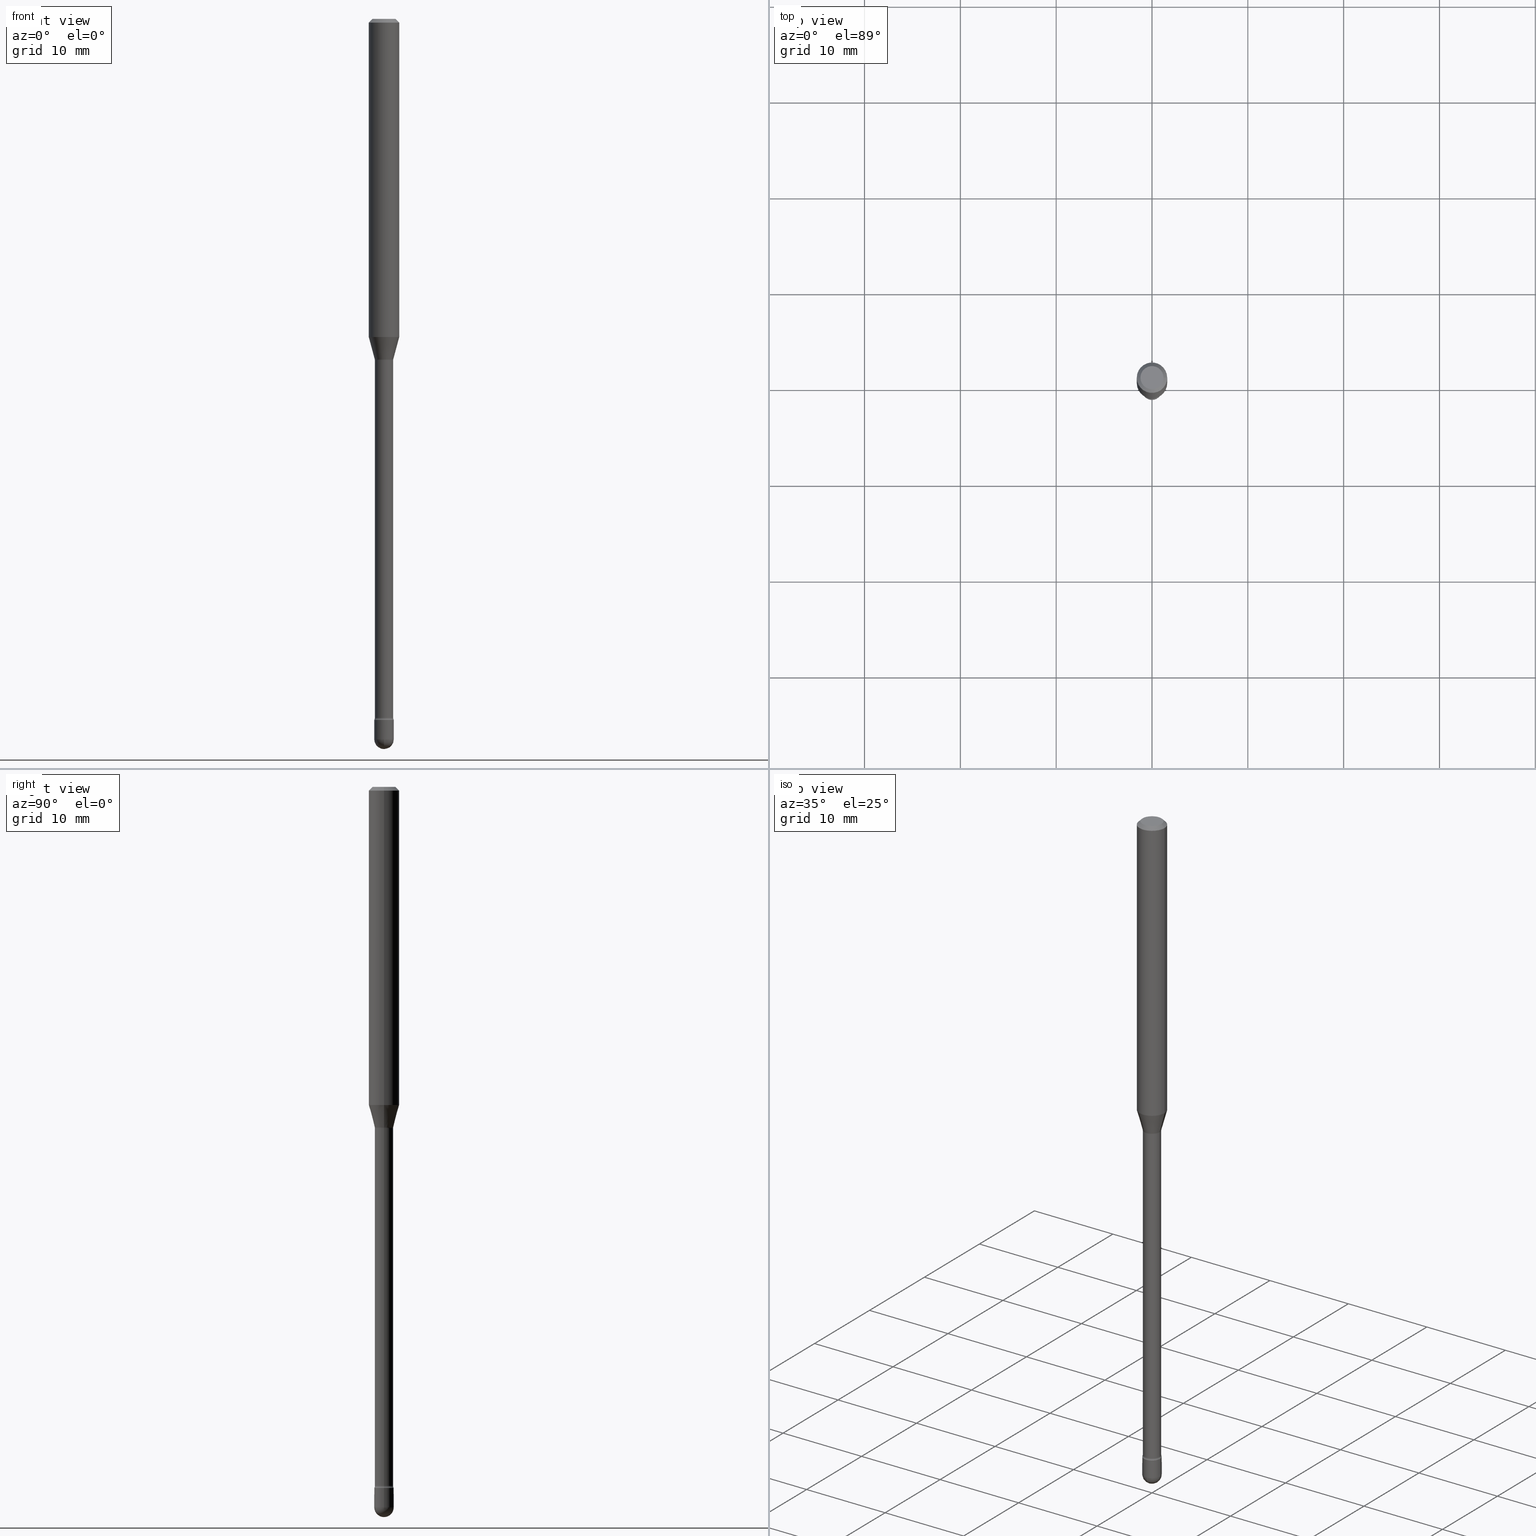
[diagram: canonical four-view strip — front | top / right | iso, engineering-drawing reading convention]
A machine part, canonical four-view strip (front | top / right | iso — engineering-drawing reading convention). The complete STEP part file that produces these views, byte-faithful:
ISO-10303-21;
HEADER;
FILE_DESCRIPTION (( 'STEP AP203' ),
    '1' );
FILE_NAME ('09534.STEP',
    '2024-04-10T00:22:45',
    ( '' ),
    ( '' ),
    'SwSTEP 2.0',
    'SolidWorks 2023',
    '' );
FILE_SCHEMA (( 'CONFIG_CONTROL_DESIGN' ));
ENDSEC;

DATA;
#1 =( GEOMETRIC_REPRESENTATION_CONTEXT ( 3 ) GLOBAL_UNCERTAINTY_ASSIGNED_CONTEXT ( ( #383 ) ) GLOBAL_UNIT_ASSIGNED_CONTEXT ( ( #117, #154, #313 ) ) REPRESENTATION_CONTEXT ( 'NONE', 'WORKASPACE' ) );
#2 = PERSON_AND_ORGANIZATION_ROLE ( 'creator' ) ;
#3 = DIRECTION ( 'NONE',  ( 1.000000000000000000, -6.982962677686255667E-15, 0.000000000000000000 ) ) ;
#4 = EDGE_CURVE ( 'NONE', #456, #12, #48, .T. ) ;
#5 = CARTESIAN_POINT ( 'NONE',  ( 3.668203209277725232E-31, -5.237222008264747365E-17, -0.01500000000000008271 ) ) ;
#6 = DIRECTION ( 'NONE',  ( 1.000000000000000000, -6.982962677686262766E-15, 0.000000000000000000 ) ) ;
#7 = ORIENTED_EDGE ( 'NONE', *, *, #4, .F. ) ;
#8 = VECTOR ( 'NONE', #85, 39.37007874015748143 ) ;
#9 = DIRECTION ( 'NONE',  ( 0.2588190451025209615, 1.565188264969624926E-15, 0.9659258262890682012 ) ) ;
#10 = ORIENTED_EDGE ( 'NONE', *, *, #197, .F. ) ;
#11 = DIRECTION ( 'NONE',  ( -2.445468806185136597E-29, 3.491481338843145583E-15, 1.000000000000000000 ) ) ;
#12 = VERTEX_POINT ( 'NONE', #483 ) ;
#13 = ADVANCED_FACE ( 'NONE', ( #35 ), #152, .T. ) ;
#14 = CYLINDRICAL_SURFACE ( 'NONE', #295, 0.04000000000000000083 ) ;
#15 = VERTEX_POINT ( 'NONE', #22 ) ;
#16 = EDGE_LOOP ( 'NONE', ( #450, #489, #176, #182 ) ) ;
#17 = CIRCLE ( 'NONE', #399, 0.03999999999999999389 ) ;
#18 = DIRECTION ( 'NONE',  ( 1.000000000000000000, -6.982962677686267499E-15, 4.884662768193073002E-29 ) ) ;
#19 = ORIENTED_EDGE ( 'NONE', *, *, #83, .F. ) ;
#20 = EDGE_LOOP ( 'NONE', ( #414, #331, #258, #462 ) ) ;
#21 = LENGTH_MEASURE_WITH_UNIT ( LENGTH_MEASURE( 0.02539999999999999897 ), #467 );
#22 = CARTESIAN_POINT ( 'NONE',  ( -0.06250000000000000000, -1.863905534790959713E-15, -0.01500000000000008271 ) ) ;
#23 = ORIENTED_EDGE ( 'NONE', *, *, #137, .T. ) ;
#24 = VERTEX_POINT ( 'NONE', #416 ) ;
#25 = FACE_OUTER_BOUND ( 'NONE', #141, .T. ) ;
#26 = DIRECTION ( 'NONE',  ( -2.438088387897960049E-29, 3.491481338843145188E-15, 1.000000000000000000 ) ) ;
#27 = LOCAL_TIME ( 20, 22, 45.00000000000000000, #385 ) ;
#28 = VERTEX_POINT ( 'NONE', #158 ) ;
#29 = DIRECTION ( 'NONE',  ( -2.445468806185136597E-29, 3.491481338843145583E-15, 1.000000000000000000 ) ) ;
#30 = DIRECTION ( 'NONE',  ( -0.2588190451025209615, 5.211531920934547097E-15, 0.9659258262890682012 ) ) ;
#31 = ADVANCED_FACE ( 'NONE', ( #324 ), #436, .F. ) ;
#32 = CARTESIAN_POINT ( 'NONE',  ( 7.042950161813195730E-29, -1.005546625586826288E-14, -2.880000000000000782 ) ) ;
#33 = VERTEX_POINT ( 'NONE', #287 ) ;
#34 = ADVANCED_FACE ( 'NONE', ( #192 ), #121, .T. ) ;
#35 = FACE_OUTER_BOUND ( 'NONE', #484, .T. ) ;
#36 = VERTEX_POINT ( 'NONE', #202 ) ;
#37 = CC_DESIGN_PERSON_AND_ORGANIZATION_ASSIGNMENT ( #321, #2, ( #157 ) ) ;
#38 = APPROVAL_STATUS ( 'not_yet_approved' ) ;
#39 = ORIENTED_EDGE ( 'NONE', *, *, #342, .F. ) ;
#40 = CIRCLE ( 'NONE', #84, 0.04000000000000004940 ) ;
#41 = DIRECTION ( 'NONE',  ( 1.000000000000000000, -6.982962677686284065E-15, 0.000000000000000000 ) ) ;
#42 = AXIS2_PLACEMENT_3D ( 'NONE', #100, #536, #341 ) ;
#43 = LINE ( 'NONE', #164, #485 ) ;
#44 = EDGE_CURVE ( 'NONE', #12, #456, #294, .T. ) ;
#45 = DIRECTION ( 'NONE',  ( 7.105427357601001859E-15, 1.000000000000000000, -3.491481338843145583E-15 ) ) ;
#46 = EDGE_LOOP ( 'NONE', ( #405, #87, #93, #180 ) ) ;
#47 = LINE ( 'NONE', #248, #57 ) ;
#48 = CIRCLE ( 'NONE', #354, 0.03811111260566397985 ) ;
#49 = AXIS2_PLACEMENT_3D ( 'NONE', #449, #140, #225 ) ;
#50 = APPROVAL_PERSON_ORGANIZATION ( #193, #105, #325 ) ;
#51 = CARTESIAN_POINT ( 'NONE',  ( -0.06250000000000000000, -4.119528059349334569E-15, -1.307071934891535170 ) ) ;
#52 = EDGE_CURVE ( 'NONE', #159, #466, #512, .T. ) ;
#53 = DIRECTION ( 'NONE',  ( -2.445468806185136597E-29, 3.491481338843145583E-15, 1.000000000000000000 ) ) ;
#54 = EDGE_LOOP ( 'NONE', ( #334, #229, #285, #493 ) ) ;
#55 = ORIENTED_EDGE ( 'NONE', *, *, #222, .T. ) ;
#56 = CARTESIAN_POINT ( 'NONE',  ( 3.668203209277725232E-31, -5.237222008264747365E-17, -0.01500000000000008271 ) ) ;
#57 = VECTOR ( 'NONE', #130, 39.37007874015748143 ) ;
#58 = DIRECTION ( 'NONE',  ( 1.000000000000000000, -6.982962677686285643E-15, 0.000000000000000000 ) ) ;
#59 = ORIENTED_EDGE ( 'NONE', *, *, #246, .T. ) ;
#60 = CARTESIAN_POINT ( 'NONE',  ( 3.196403644217299364E-29, -4.563617269199397974E-15, -1.307071934891535170 ) ) ;
#61 = CC_DESIGN_DATE_AND_TIME_ASSIGNMENT ( #477, #210, ( #157 ) ) ;
#62 = ORIENTED_EDGE ( 'NONE', *, *, #195, .F. ) ;
#63 = CARTESIAN_POINT ( 'NONE',  ( -0.04749999999999999362, 3.578768372314208041E-16, -8.274703207154778150E-17 ) ) ;
#64 = EDGE_CURVE ( 'NONE', #36, #270, #317, .T. ) ;
#65 = TOROIDAL_SURFACE ( 'NONE', #428, 0.05260000000000000786, 0.01500000000000003240 ) ;
#66 = EDGE_CURVE ( 'NONE', #527, #33, #474, .T. ) ;
#67 = LOCAL_TIME ( 20, 22, 45.00000000000000000, #430 ) ;
#68 = DIRECTION ( 'NONE',  ( 2.438088387897960049E-29, -3.491481338843145188E-15, -1.000000000000000000 ) ) ;
#69 = CC_DESIGN_DATE_AND_TIME_ASSIGNMENT ( #129, #133, ( #429 ) ) ;
#70 = APPROVAL_STATUS ( 'not_yet_approved' ) ;
#71 = DIRECTION ( 'NONE',  ( 1.000000000000000000, -6.982962677686262766E-15, 0.000000000000000000 ) ) ;
#72 = DIRECTION ( 'NONE',  ( 0.000000000000000000, 0.000000000000000000, 1.000000000000000000 ) ) ;
#73 = DIRECTION ( 'NONE',  ( 1.000000000000000000, -6.982962677686247778E-15, 0.000000000000000000 ) ) ;
#74 = AXIS2_PLACEMENT_3D ( 'NONE', #56, #96, #138 ) ;
#75 = DIRECTION ( 'NONE',  ( 1.000000000000000000, -6.982962677686285643E-15, 0.000000000000000000 ) ) ;
#76 = CARTESIAN_POINT ( 'NONE',  ( 3.196403644217299364E-29, -4.563617269199397974E-15, -1.307071934891535170 ) ) ;
#77 = ADVANCED_FACE ( 'NONE', ( #554 ), #151, .F. ) ;
#78 = ORIENTED_EDGE ( 'NONE', *, *, #442, .F. ) ;
#79 = DIRECTION ( 'NONE',  ( 1.000000000000000000, -6.982962677686285643E-15, 0.000000000000000000 ) ) ;
#80 = CALENDAR_DATE ( 2024, 9, 4 ) ;
#81 = DIRECTION ( 'NONE',  ( -2.445468806185136877E-29, 3.491481338843145188E-15, 1.000000000000000000 ) ) ;
#82 = ORIENTED_EDGE ( 'NONE', *, *, #468, .T. ) ;
#83 = EDGE_CURVE ( 'NONE', #101, #391, #146, .T. ) ;
#84 = AXIS2_PLACEMENT_3D ( 'NONE', #90, #301, #174 ) ;
#85 = DIRECTION ( 'NONE',  ( -2.445468806185136877E-29, 3.491481338843145188E-15, 1.000000000000000000 ) ) ;
#86 = LOCAL_TIME ( 20, 22, 45.00000000000000000, #173 ) ;
#87 = ORIENTED_EDGE ( 'NONE', *, *, #257, .F. ) ;
#88 = CARTESIAN_POINT ( 'NONE',  ( -0.04000000000000000083, 2.842170943040400803E-16, -1.967574036101962509E-30 ) ) ;
#89 = ORIENTED_EDGE ( 'NONE', *, *, #544, .T. ) ;
#90 = CARTESIAN_POINT ( 'NONE',  ( 7.238587666308004730E-29, -1.033478476297570976E-14, -2.959999999999999964 ) ) ;
#91 = FACE_OUTER_BOUND ( 'NONE', #54, .T. ) ;
#92 = AXIS2_PLACEMENT_3D ( 'NONE', #469, #194, #552 ) ;
#93 = ORIENTED_EDGE ( 'NONE', *, *, #236, .T. ) ;
#94 = AXIS2_PLACEMENT_3D ( 'NONE', #413, #199, #372 ) ;
#95 = EDGE_CURVE ( 'NONE', #298, #24, #319, .T. ) ;
#96 = DIRECTION ( 'NONE',  ( 2.445468806185136597E-29, -3.491481338843145583E-15, -1.000000000000000000 ) ) ;
#97 = DIRECTION ( 'NONE',  ( -2.445468806185136597E-29, 3.491481338843145583E-15, 1.000000000000000000 ) ) ;
#98 = ORIENTED_EDGE ( 'NONE', *, *, #246, .F. ) ;
#99 = ADVANCED_FACE ( 'NONE', ( #206 ), #123, .T. ) ;
#100 = CARTESIAN_POINT ( 'NONE',  ( 7.023046990124811063E-29, -1.002704980158431387E-14, -2.871861204020250469 ) ) ;
#101 = VERTEX_POINT ( 'NONE', #149 ) ;
#102 = ADVANCED_FACE ( 'NONE', ( #25 ), #155, .F. ) ;
#103 = AXIS2_PLACEMENT_3D ( 'NONE', #252, #528, #382 ) ;
#104 = CARTESIAN_POINT ( 'NONE',  ( 3.428485609800787057E-29, -4.894968807958481776E-15, -1.401974787463811101 ) ) ;
#105 = APPROVAL ( #70, 'UNSPECIFIED' ) ;
#106 = ORIENTED_EDGE ( 'NONE', *, *, #52, .T. ) ;
#107 = DIRECTION ( 'NONE',  ( -2.445468806185136597E-29, 3.491481338843145583E-15, 1.000000000000000000 ) ) ;
#108 = ADVANCED_FACE ( 'NONE', ( #234 ), #507, .T. ) ;
#109 = CARTESIAN_POINT ( 'NONE',  ( 2.023552857353652888E-45, -2.889097183224559242E-31, -8.274703207154537794E-17 ) ) ;
#110 = CARTESIAN_POINT ( 'NONE',  ( 3.418991601282113754E-29, -4.881413879966791190E-15, -1.398092501787273179 ) ) ;
#111 = ORIENTED_EDGE ( 'NONE', *, *, #195, .T. ) ;
#112 = CIRCLE ( 'NONE', #250, 0.04000000000000000083 ) ;
#113 = ORIENTED_EDGE ( 'NONE', *, *, #197, .T. ) ;
#114 = AXIS2_PLACEMENT_3D ( 'NONE', #323, #72, #201 ) ;
#115 = PERSON ( 'UNSPECIFIED', 'UNSPECIFIED', 'UNSPECIFIED', ('UNSPECIFIED'), ('UNSPECIFIED'), ('UNSPECIFIED') ) ;
#116 = DIRECTION ( 'NONE',  ( 1.000000000000000000, -6.982962677686261977E-15, 0.000000000000000000 ) ) ;
#117 =( CONVERSION_BASED_UNIT ( 'INCH', #21 ) LENGTH_UNIT ( ) NAMED_UNIT ( #306 ) );
#118 = DIRECTION ( 'NONE',  ( -1.000000000000000000, 7.105427357601001070E-15, -4.926315508542082329E-29 ) ) ;
#119 = VERTEX_POINT ( 'NONE', #457 ) ;
#120 = CYLINDRICAL_SURFACE ( 'NONE', #465, 0.04000000000000000083 ) ;
#121 = SPHERICAL_SURFACE ( 'NONE', #207, 0.04000000000000004940 ) ;
#122 = CIRCLE ( 'NONE', #103, 0.01500000000000010526 ) ;
#123 = CYLINDRICAL_SURFACE ( 'NONE', #92, 0.03760000000000003617 ) ;
#124 = PERSON_AND_ORGANIZATION_ROLE ( 'classification_officer' ) ;
#125 = ORIENTED_EDGE ( 'NONE', *, *, #498, .F. ) ;
#126 = CARTESIAN_POINT ( 'NONE',  ( -0.05260000000000018133, -9.653304322574499734E-15, -2.871861204020250469 ) ) ;
#127 = EDGE_LOOP ( 'NONE', ( #142, #265, #23, #249 ) ) ;
#128 = EDGE_CURVE ( 'NONE', #144, #348, #226, .T. ) ;
#129 = DATE_AND_TIME ( #520, #311 ) ;
#130 = DIRECTION ( 'NONE',  ( -0.7071067811865475727, 2.468850131082257455E-15, -0.7071067811865474617 ) ) ;
#131 = AXIS2_PLACEMENT_3D ( 'NONE', #519, #472, #293 ) ;
#132 = FACE_OUTER_BOUND ( 'NONE', #253, .T. ) ;
#133 = DATE_TIME_ROLE ( 'classification_date' ) ;
#134 = DIRECTION ( 'NONE',  ( -2.445468806185136877E-29, 3.491481338843145188E-15, 1.000000000000000000 ) ) ;
#135 = LINE ( 'NONE', #564, #8 ) ;
#136 = EDGE_CURVE ( 'NONE', #28, #420, #532, .T. ) ;
#137 = EDGE_CURVE ( 'NONE', #349, #15, #47, .T. ) ;
#138 = DIRECTION ( 'NONE',  ( -1.000000000000000000, 6.982962677686266711E-15, 0.000000000000000000 ) ) ;
#139 = CIRCLE ( 'NONE', #283, 0.01500000000000002720 ) ;
#140 = DIRECTION ( 'NONE',  ( -2.445468806185136597E-29, 3.491481338843145583E-15, 1.000000000000000000 ) ) ;
#141 = EDGE_LOOP ( 'NONE', ( #346, #368 ) ) ;
#142 = ORIENTED_EDGE ( 'NONE', *, *, #189, .F. ) ;
#143 = DIRECTION ( 'NONE',  ( 7.105427357601001859E-15, 1.000000000000000000, -3.491481338843145583E-15 ) ) ;
#144 = VERTEX_POINT ( 'NONE', #561 ) ;
#145 = DIRECTION ( 'NONE',  ( -2.445468806185136597E-29, 3.491481338843145583E-15, 1.000000000000000000 ) ) ;
#146 = CIRCLE ( 'NONE', #327, 0.03999999999999999389 ) ;
#147 = AXIS2_PLACEMENT_3D ( 'NONE', #347, #143, #307 ) ;
#148 = CARTESIAN_POINT ( 'NONE',  ( 7.238587666308004730E-29, -1.033478476297570976E-14, -2.959999999999999964 ) ) ;
#149 = CARTESIAN_POINT ( 'NONE',  ( 0.03999999999999999389, -1.047444401652943635E-14, -2.959999999999999964 ) ) ;
#150 = EDGE_CURVE ( 'NONE', #119, #15, #438, .T. ) ;
#151 = PLANE ( 'NONE',  #356 ) ;
#152 = CONICAL_SURFACE ( 'NONE', #377, 0.03811111260566397985, 0.2617993877991496299 ) ;
#153 = CONICAL_SURFACE ( 'NONE', #74, 0.06250000000000000000, 0.7853981633974483900 ) ;
#154 =( NAMED_UNIT ( * ) PLANE_ANGLE_UNIT ( ) SI_UNIT ( $, .RADIAN. ) );
#155 = PLANE ( 'NONE',  #335 ) ;
#156 = DIRECTION ( 'NONE',  ( 1.000000000000000000, -6.982962677686266711E-15, 4.852736867747366207E-29 ) ) ;
#157 = PRODUCT_DEFINITION ( 'UNKNOWN', '', #439, #390 ) ;
#158 = CARTESIAN_POINT ( 'NONE',  ( -0.04000000000000000083, -9.910908415117945989E-15, -2.880000000000000782 ) ) ;
#159 = VERTEX_POINT ( 'NONE', #51 ) ;
#160 = AXIS2_PLACEMENT_3D ( 'NONE', #110, #237, #412 ) ;
#161 = EDGE_CURVE ( 'NONE', #144, #36, #256, .T. ) ;
#162 = AXIS2_PLACEMENT_3D ( 'NONE', #239, #338, #41 ) ;
#163 = ORGANIZATION ( 'UNSPECIFIED', 'UNSPECIFIED', '' ) ;
#164 = CARTESIAN_POINT ( 'NONE',  ( 0.06250000000000000000, -4.811533449433681963E-16, -0.01500000000000008271 ) ) ;
#165 = DIRECTION ( 'NONE',  ( 1.000000000000000000, -6.982962677686266711E-15, 0.000000000000000000 ) ) ;
#166 = CC_DESIGN_PERSON_AND_ORGANIZATION_ASSIGNMENT ( #526, #124, ( #429 ) ) ;
#167 = CARTESIAN_POINT ( 'NONE',  ( 0.04749999999999999362, -4.035134999187581581E-16, -8.274703207154280181E-17 ) ) ;
#168 = ORIENTED_EDGE ( 'NONE', *, *, #64, .T. ) ;
#169 = APPROVAL_STATUS ( 'not_yet_approved' ) ;
#170 = AXIS2_PLACEMENT_3D ( 'NONE', #318, #118, #326 ) ;
#171 = LOCAL_TIME ( 20, 22, 45.00000000000000000, #407 ) ;
#172 = DIRECTION ( 'NONE',  ( -2.445468806185136877E-29, 3.491481338843145188E-15, 1.000000000000000000 ) ) ;
#173 = COORDINATED_UNIVERSAL_TIME_OFFSET ( 5, 0, .BEHIND. ) ;
#174 = DIRECTION ( 'NONE',  ( 6.982962677686266711E-15, 1.000000000000000000, 0.000000000000000000 ) ) ;
#175 = CARTESIAN_POINT ( 'NONE',  ( 3.668203209277725232E-31, -5.237222008264747365E-17, -0.01500000000000008271 ) ) ;
#176 = ORIENTED_EDGE ( 'NONE', *, *, #150, .T. ) ;
#177 = DIRECTION ( 'NONE',  ( 1.000000000000000000, -6.982962677686265922E-15, 4.876176775795935793E-29 ) ) ;
#178 = AXIS2_PLACEMENT_3D ( 'NONE', #76, #29, #71 ) ;
#179 = ORIENTED_EDGE ( 'NONE', *, *, #136, .T. ) ;
#180 = ORIENTED_EDGE ( 'NONE', *, *, #214, .T. ) ;
#181 = FACE_OUTER_BOUND ( 'NONE', #191, .T. ) ;
#182 = ORIENTED_EDGE ( 'NONE', *, *, #137, .F. ) ;
#183 = ORIENTED_EDGE ( 'NONE', *, *, #470, .T. ) ;
#184 = CARTESIAN_POINT ( 'NONE',  ( 7.238587666308004730E-29, -1.033478476297570976E-14, -2.959999999999999964 ) ) ;
#185 = CARTESIAN_POINT ( 'NONE',  ( 0.000000000000000000, 0.000000000000000000, 0.000000000000000000 ) ) ;
#186 = AXIS2_PLACEMENT_3D ( 'NONE', #410, #419, #500 ) ;
#187 = ORIENTED_EDGE ( 'NONE', *, *, #214, .F. ) ;
#188 = AXIS2_PLACEMENT_3D ( 'NONE', #339, #211, #165 ) ;
#189 = EDGE_CURVE ( 'NONE', #205, #119, #43, .T. ) ;
#190 = PERSON_AND_ORGANIZATION_ROLE ( 'design_owner' ) ;
#191 = EDGE_LOOP ( 'NONE', ( #353, #351, #113, #183 ) ) ;
#192 = FACE_OUTER_BOUND ( 'NONE', #511, .T. ) ;
#193 = PERSON_AND_ORGANIZATION ( #115, #163 ) ;
#194 = DIRECTION ( 'NONE',  ( -2.445468806185136597E-29, 3.491481338843145583E-15, 1.000000000000000000 ) ) ;
#195 = EDGE_CURVE ( 'NONE', #101, #420, #209, .T. ) ;
#196 = AXIS2_PLACEMENT_3D ( 'NONE', #223, #305, #392 ) ;
#197 = EDGE_CURVE ( 'NONE', #12, #270, #139, .T. ) ;
#198 = AXIS2_PLACEMENT_3D ( 'NONE', #490, #445, #58 ) ;
#199 = DIRECTION ( 'NONE',  ( -1.000000000000000000, 6.982962677686265922E-15, -4.883557194083112340E-29 ) ) ;
#200 = CARTESIAN_POINT ( 'NONE',  ( 2.793185071075210841E-16, 0.03999999999998994638, -2.880000000000000782 ) ) ;
#201 = DIRECTION ( 'NONE',  ( 1.000000000000000000, 0.000000000000000000, 0.000000000000000000 ) ) ;
#202 = CARTESIAN_POINT ( 'NONE',  ( -0.03759999999999999454, -7.193845236125598810E-15, -1.401974787463811101 ) ) ;
#203 = EDGE_CURVE ( 'NONE', #348, #270, #135, .T. ) ;
#204 = CALENDAR_DATE ( 2024, 9, 4 ) ;
#205 = VERTEX_POINT ( 'NONE', #167 ) ;
#206 = FACE_OUTER_BOUND ( 'NONE', #432, .T. ) ;
#207 = AXIS2_PLACEMENT_3D ( 'NONE', #290, #376, #464 ) ;
#208 = AXIS2_PLACEMENT_3D ( 'NONE', #32, #282, #362 ) ;
#209 = LINE ( 'NONE', #264, #366 ) ;
#210 = DATE_TIME_ROLE ( 'creation_date' ) ;
#211 = DIRECTION ( 'NONE',  ( -2.445468806185136597E-29, 3.491481338843145583E-15, 1.000000000000000000 ) ) ;
#212 = EDGE_LOOP ( 'NONE', ( #224, #106, #358, #363 ) ) ;
#213 = CARTESIAN_POINT ( 'NONE',  ( 7.042950161813195730E-29, -1.005546625586826288E-14, -2.880000000000000782 ) ) ;
#214 = EDGE_CURVE ( 'NONE', #33, #527, #475, .T. ) ;
#215 = CARTESIAN_POINT ( 'NONE',  ( 3.418991601282113754E-29, -4.881413879966791190E-15, -1.398092501787273179 ) ) ;
#216 = DATE_AND_TIME ( #80, #86 ) ;
#217 = CONICAL_SURFACE ( 'NONE', #49, 0.03811111260566397985, 0.2617993877991496299 ) ;
#218 = CIRCLE ( 'NONE', #417, 0.04749999999999999362 ) ;
#219 = DIRECTION ( 'NONE',  ( -2.445468806185136597E-29, 3.491481338843145583E-15, 1.000000000000000000 ) ) ;
#220 = CARTESIAN_POINT ( 'NONE',  ( 7.042950161813195730E-29, -1.005546625586826288E-14, -2.880000000000000782 ) ) ;
#221 = ORIENTED_EDGE ( 'NONE', *, *, #203, .T. ) ;
#222 = EDGE_CURVE ( 'NONE', #144, #527, #463, .T. ) ;
#223 = CARTESIAN_POINT ( 'NONE',  ( -1.169113584055446105E-44, 1.669184350826100908E-30, 4.780733988912460139E-16 ) ) ;
#224 = ORIENTED_EDGE ( 'NONE', *, *, #266, .F. ) ;
#225 = DIRECTION ( 'NONE',  ( 1.000000000000000000, -6.982962677686261977E-15, 0.000000000000000000 ) ) ;
#226 = CIRCLE ( 'NONE', #408, 0.03760000000000007087 ) ;
#227 = VERTEX_POINT ( 'NONE', #481 ) ;
#228 = CARTESIAN_POINT ( 'NONE',  ( 3.428485609800787057E-29, -4.894968807958481776E-15, -1.401974787463811101 ) ) ;
#229 = ORIENTED_EDGE ( 'NONE', *, *, #161, .T. ) ;
#230 = CARTESIAN_POINT ( 'NONE',  ( 2.023552857353652888E-45, -2.889097183224559242E-31, -8.274703207154537794E-17 ) ) ;
#231 = CIRCLE ( 'NONE', #198, 0.03999999999999999389 ) ;
#232 = FACE_OUTER_BOUND ( 'NONE', #312, .T. ) ;
#233 = ADVANCED_BREP_SHAPE_REPRESENTATION ( '09534', ( #398, #402, #114 ), #1 ) ;
#234 = FACE_OUTER_BOUND ( 'NONE', #212, .T. ) ;
#235 = CALENDAR_DATE ( 2024, 9, 4 ) ;
#236 = EDGE_CURVE ( 'NONE', #348, #33, #122, .T. ) ;
#237 = DIRECTION ( 'NONE',  ( -2.445468806185136597E-29, 3.491481338843145583E-15, 1.000000000000000000 ) ) ;
#238 = PLANE ( 'NONE',  #486 ) ;
#239 = CARTESIAN_POINT ( 'NONE',  ( 7.042950161813195730E-29, -1.005546625586826288E-14, -2.880000000000000782 ) ) ;
#240 = AXIS2_PLACEMENT_3D ( 'NONE', #459, #284, #156 ) ;
#241 = AXIS2_PLACEMENT_3D ( 'NONE', #148, #506, #75 ) ;
#242 = SPHERICAL_SURFACE ( 'NONE', #94, 0.04000000000000004940 ) ;
#243 = DIRECTION ( 'NONE',  ( -2.445468806185136597E-29, 3.491481338843145583E-15, 1.000000000000000000 ) ) ;
#244 = ADVANCED_FACE ( 'NONE', ( #91 ), #380, .T. ) ;
#245 = CARTESIAN_POINT ( 'NONE',  ( 7.238587666308004730E-29, -1.033478476297570976E-14, -2.959999999999999964 ) ) ;
#246 = EDGE_CURVE ( 'NONE', #298, #391, #40, .T. ) ;
#247 = COORDINATED_UNIVERSAL_TIME_OFFSET ( 5, 0, .BEHIND. ) ;
#248 = CARTESIAN_POINT ( 'NONE',  ( -0.06250000000000000000, 3.840629472727441958E-16, -0.01500000000000008271 ) ) ;
#249 = ORIENTED_EDGE ( 'NONE', *, *, #516, .T. ) ;
#250 = AXIS2_PLACEMENT_3D ( 'NONE', #220, #558, #473 ) ;
#251 = CC_DESIGN_PERSON_AND_ORGANIZATION_ASSIGNMENT ( #461, #190, ( #539 ) ) ;
#252 = CARTESIAN_POINT ( 'NONE',  ( 0.05260000000000018133, -1.039435363843061242E-14, -2.871861204020250469 ) ) ;
#253 = EDGE_LOOP ( 'NONE', ( #384, #55, #280, #447 ) ) ;
#254 = DATE_AND_TIME ( #204, #27 ) ;
#255 = ORIENTED_EDGE ( 'NONE', *, *, #83, .T. ) ;
#256 = LINE ( 'NONE', #431, #274 ) ;
#257 = EDGE_CURVE ( 'NONE', #348, #144, #557, .T. ) ;
#258 = ORIENTED_EDGE ( 'NONE', *, *, #424, .F. ) ;
#259 = APPROVAL_DATE_TIME ( #216, #551 ) ;
#260 = ORIENTED_EDGE ( 'NONE', *, *, #136, .F. ) ;
#261 = CARTESIAN_POINT ( 'NONE',  ( 7.023046990124811063E-29, -1.002704980158431387E-14, -2.871861204020250469 ) ) ;
#262 = DIRECTION ( 'NONE',  ( 1.000000000000000000, -6.982962677686261977E-15, 0.000000000000000000 ) ) ;
#263 = CC_DESIGN_SECURITY_CLASSIFICATION ( #429, ( #439 ) ) ;
#264 = CARTESIAN_POINT ( 'NONE',  ( 0.04000000000000000083, -2.793185071074506290E-16, 1.950470710318374387E-30 ) ) ;
#265 = ORIENTED_EDGE ( 'NONE', *, *, #556, .F. ) ;
#266 = EDGE_CURVE ( 'NONE', #159, #15, #332, .T. ) ;
#267 = DIRECTION ( 'NONE',  ( 1.000000000000000000, -6.982962677686260400E-15, 4.883557194083110659E-29 ) ) ;
#268 = CC_DESIGN_PERSON_AND_ORGANIZATION_ASSIGNMENT ( #518, #560, ( #439 ) ) ;
#269 = CARTESIAN_POINT ( 'NONE',  ( -0.03811111260566397985, -4.365073098589614504E-15, -1.398092501787273179 ) ) ;
#270 = VERTEX_POINT ( 'NONE', #328 ) ;
#271 = ORIENTED_EDGE ( 'NONE', *, *, #544, .F. ) ;
#272 = CARTESIAN_POINT ( 'NONE',  ( 0.06250000000000000000, -5.000052436554788855E-15, -1.307071934891535170 ) ) ;
#273 = CIRCLE ( 'NONE', #310, 0.04749999999999999362 ) ;
#274 = VECTOR ( 'NONE', #565, 39.37007874015748143 ) ;
#275 = TOROIDAL_SURFACE ( 'NONE', #42, 0.05260000000000018133, 0.01500000000000010700 ) ;
#276 = ORIENTED_EDGE ( 'NONE', *, *, #150, .F. ) ;
#277 = FACE_OUTER_BOUND ( 'NONE', #16, .T. ) ;
#278 = ORIENTED_EDGE ( 'NONE', *, *, #315, .F. ) ;
#279 = FACE_OUTER_BOUND ( 'NONE', #46, .T. ) ;
#280 = ORIENTED_EDGE ( 'NONE', *, *, #66, .T. ) ;
#281 = DIRECTION ( 'NONE',  ( 1.000000000000000000, -6.982962677686265922E-15, 4.876176775795935793E-29 ) ) ;
#282 = DIRECTION ( 'NONE',  ( -2.445468806185136597E-29, 3.491481338843145583E-15, 1.000000000000000000 ) ) ;
#283 = AXIS2_PLACEMENT_3D ( 'NONE', #299, #433, #3 ) ;
#284 = DIRECTION ( 'NONE',  ( -2.445468806185136597E-29, 3.491481338843145583E-15, 1.000000000000000000 ) ) ;
#285 = ORIENTED_EDGE ( 'NONE', *, *, #470, .F. ) ;
#286 = APPLICATION_PROTOCOL_DEFINITION ( 'international standard', 'config_control_design', 1994, #333 ) ;
#287 = CARTESIAN_POINT ( 'NONE',  ( 0.04000000000000007022, -1.033478476297571449E-14, -2.880000000000000782 ) ) ;
#288 = CLOSED_SHELL ( 'NONE', ( #31, #244, #296, #360, #357, #451, #13, #108, #401, #102, #77, #482, #99, #350 ) ) ;
#289 = AXIS2_PLACEMENT_3D ( 'NONE', #60, #496, #6 ) ;
#290 = CARTESIAN_POINT ( 'NONE',  ( 7.238587666308004730E-29, -1.033478476297570976E-14, -2.959999999999999964 ) ) ;
#291 = DIRECTION ( 'NONE',  ( -2.445468806185136597E-29, 3.491481338843145583E-15, 1.000000000000000000 ) ) ;
#292 = APPROVAL_ROLE ( '' ) ;
#293 = DIRECTION ( 'NONE',  ( 1.000000000000000000, -6.982962677686247778E-15, 0.000000000000000000 ) ) ;
#294 = CIRCLE ( 'NONE', #160, 0.03811111260566397985 ) ;
#295 = AXIS2_PLACEMENT_3D ( 'NONE', #185, #53, #177 ) ;
#296 = ADVANCED_FACE ( 'NONE', ( #132 ), #302, .F. ) ;
#297 = DIRECTION ( 'NONE',  ( -2.445468806185136597E-29, 3.491481338843145583E-15, 1.000000000000000000 ) ) ;
#298 = VERTEX_POINT ( 'NONE', #435 ) ;
#299 = CARTESIAN_POINT ( 'NONE',  ( 0.05260000000000000786, -5.262272644804779538E-15, -1.401974787463811101 ) ) ;
#300 = PERSON_AND_ORGANIZATION_ROLE ( 'creator' ) ;
#301 = DIRECTION ( 'NONE',  ( 1.000000000000000000, -6.982962677686265922E-15, 4.883557194083112340E-29 ) ) ;
#302 = TOROIDAL_SURFACE ( 'NONE', #453, 0.05260000000000018133, 0.01500000000000010700 ) ;
#303 = APPROVAL_PERSON_ORGANIZATION ( #425, #551, #434 ) ;
#304 = FACE_OUTER_BOUND ( 'NONE', #545, .T. ) ;
#305 = DIRECTION ( 'NONE',  ( -2.445468806185136597E-29, 3.491481338843145583E-15, 1.000000000000000000 ) ) ;
#306 = DIMENSIONAL_EXPONENTS ( 1.000000000000000000, 0.000000000000000000, 0.000000000000000000, 0.000000000000000000, 0.000000000000000000, 0.000000000000000000, 0.000000000000000000 ) ;
#307 = DIRECTION ( 'NONE',  ( -1.000000000000000000, 7.105427357600978193E-15, 0.000000000000000000 ) ) ;
#308 = ORIENTED_EDGE ( 'NONE', *, *, #424, .T. ) ;
#309 = DIRECTION ( 'NONE',  ( 1.000000000000000000, -6.982962677686285643E-15, 0.000000000000000000 ) ) ;
#310 = AXIS2_PLACEMENT_3D ( 'NONE', #230, #107, #345 ) ;
#311 = LOCAL_TIME ( 20, 22, 45.00000000000000000, #247 ) ;
#312 = EDGE_LOOP ( 'NONE', ( #514, #179 ) ) ;
#313 =( NAMED_UNIT ( * ) SI_UNIT ( $, .STERADIAN. ) SOLID_ANGLE_UNIT ( ) );
#314 = CARTESIAN_POINT ( 'NONE',  ( 3.418991601282113754E-29, -4.881413879966791190E-15, -1.398092501787273179 ) ) ;
#315 = EDGE_CURVE ( 'NONE', #420, #28, #112, .T. ) ;
#316 = DIRECTION ( 'NONE',  ( -2.445468806185136597E-29, 3.491481338843145583E-15, 1.000000000000000000 ) ) ;
#317 = CIRCLE ( 'NONE', #396, 0.03759999999999999454 ) ;
#318 = CARTESIAN_POINT ( 'NONE',  ( 7.238587666308004730E-29, -1.033478476297570976E-14, -2.959999999999999964 ) ) ;
#319 = CIRCLE ( 'NONE', #170, 0.04000000000000004940 ) ;
#320 = APPROVAL ( #38, 'UNSPECIFIED' ) ;
#321 = PERSON_AND_ORGANIZATION ( #115, #163 ) ;
#322 = DIRECTION ( 'NONE',  ( -2.445468806185136597E-29, 3.491481338843145583E-15, 1.000000000000000000 ) ) ;
#323 = CARTESIAN_POINT ( 'NONE',  ( 0.000000000000000000, 0.000000000000000000, 0.000000000000000000 ) ) ;
#324 = FACE_OUTER_BOUND ( 'NONE', #423, .T. ) ;
#325 = APPROVAL_ROLE ( '' ) ;
#326 = DIRECTION ( 'NONE',  ( -7.105427357601000281E-15, -1.000000000000000000, 0.000000000000000000 ) ) ;
#327 = AXIS2_PLACEMENT_3D ( 'NONE', #245, #373, #79 ) ;
#328 = CARTESIAN_POINT ( 'NONE',  ( 0.03759999999999999454, -5.157528204639485379E-15, -1.401974787463811101 ) ) ;
#329 = SHAPE_DEFINITION_REPRESENTATION ( #508, #233 ) ;
#330 = DIRECTION ( 'NONE',  ( 1.000000000000000000, -6.982962677686267499E-15, 4.839830652673565037E-29 ) ) ;
#331 = ORIENTED_EDGE ( 'NONE', *, *, #540, .T. ) ;
#332 = LINE ( 'NONE', #521, #522 ) ;
#333 = APPLICATION_CONTEXT ( 'configuration controlled 3d designs of mechanical parts and assemblies' ) ;
#334 = ORIENTED_EDGE ( 'NONE', *, *, #257, .T. ) ;
#335 = AXIS2_PLACEMENT_3D ( 'NONE', #421, #68, #365 ) ;
#336 = CC_DESIGN_APPROVAL ( #320, ( #429 ) ) ;
#337 = VECTOR ( 'NONE', #30, 39.37007874015748143 ) ;
#338 = DIRECTION ( 'NONE',  ( -2.445468806185136597E-29, 3.491481338843145583E-15, 1.000000000000000000 ) ) ;
#339 = CARTESIAN_POINT ( 'NONE',  ( 3.668203209277725232E-31, -5.237222008264747365E-17, -0.01500000000000008271 ) ) ;
#340 = ORIENTED_EDGE ( 'NONE', *, *, #266, .T. ) ;
#341 = DIRECTION ( 'NONE',  ( 1.000000000000000000, -6.982962677686263555E-15, 4.883557194083111780E-29 ) ) ;
#342 = EDGE_CURVE ( 'NONE', #227, #28, #478, .T. ) ;
#343 = EDGE_LOOP ( 'NONE', ( #98, #371, #476, #271 ) ) ;
#344 = AXIS2_PLACEMENT_3D ( 'NONE', #213, #291, #440 ) ;
#345 = DIRECTION ( 'NONE',  ( 1.000000000000000000, -6.982962677686267499E-15, 4.884662768193073002E-29 ) ) ;
#346 = ORIENTED_EDGE ( 'NONE', *, *, #556, .T. ) ;
#347 = CARTESIAN_POINT ( 'NONE',  ( -0.05260000000000000786, -4.521223328948669220E-15, -1.401974787463811101 ) ) ;
#348 = VERTEX_POINT ( 'NONE', #515 ) ;
#349 = VERTEX_POINT ( 'NONE', #63 ) ;
#350 = ADVANCED_FACE ( 'NONE', ( #181 ), #65, .F. ) ;
#351 = ORIENTED_EDGE ( 'NONE', *, *, #44, .F. ) ;
#352 = CARTESIAN_POINT ( 'NONE',  ( 2.793185071075232042E-16, 0.03999999999998968964, -2.959999999999999964 ) ) ;
#353 = ORIENTED_EDGE ( 'NONE', *, *, #479, .F. ) ;
#354 = AXIS2_PLACEMENT_3D ( 'NONE', #215, #411, #262 ) ;
#355 = LINE ( 'NONE', #530, #537 ) ;
#356 = AXIS2_PLACEMENT_3D ( 'NONE', #200, #370, #510 ) ;
#357 = ADVANCED_FACE ( 'NONE', ( #487 ), #394, .T. ) ;
#358 = ORIENTED_EDGE ( 'NONE', *, *, #442, .T. ) ;
#359 = CARTESIAN_POINT ( 'NONE',  ( -0.04000000000000007022, -9.771249161564222548E-15, -2.880000000000000782 ) ) ;
#360 = ADVANCED_FACE ( 'NONE', ( #277 ), #153, .T. ) ;
#361 = ORIENTED_EDGE ( 'NONE', *, *, #161, .F. ) ;
#362 = DIRECTION ( 'NONE',  ( 1.000000000000000000, -6.982962677686284065E-15, 0.000000000000000000 ) ) ;
#363 = ORIENTED_EDGE ( 'NONE', *, *, #516, .F. ) ;
#364 = DATE_AND_TIME ( #235, #171 ) ;
#365 = DIRECTION ( 'NONE',  ( -1.000000000000000000, 6.982962677686265922E-15, -4.876176775795935793E-29 ) ) ;
#366 = VECTOR ( 'NONE', #134, 39.37007874015748143 ) ;
#367 = CIRCLE ( 'NONE', #409, 0.06250000000000000000 ) ;
#368 = ORIENTED_EDGE ( 'NONE', *, *, #437, .T. ) ;
#369 = CARTESIAN_POINT ( 'NONE',  ( -0.03811111260566397985, -4.610618137829893649E-15, -1.398092501787273179 ) ) ;
#370 = DIRECTION ( 'NONE',  ( -2.438088387897960049E-29, 3.491481338843145188E-15, 1.000000000000000000 ) ) ;
#371 = ORIENTED_EDGE ( 'NONE', *, *, #95, .T. ) ;
#372 = DIRECTION ( 'NONE',  ( 6.982962677686265922E-15, 1.000000000000000000, 0.000000000000000000 ) ) ;
#373 = DIRECTION ( 'NONE',  ( -2.445468806185136597E-29, 3.491481338843145583E-15, 1.000000000000000000 ) ) ;
#374 = PRODUCT_RELATED_PRODUCT_CATEGORY ( 'detail', '', ( #539 ) ) ;
#375 = PERSON_AND_ORGANIZATION ( #115, #163 ) ;
#376 = DIRECTION ( 'NONE',  ( -1.000000000000000000, 6.982962677686265922E-15, -4.883557194083112340E-29 ) ) ;
#377 = AXIS2_PLACEMENT_3D ( 'NONE', #314, #503, #116 ) ;
#378 = APPROVAL_PERSON_ORGANIZATION ( #563, #320, #292 ) ;
#379 = ORIENTED_EDGE ( 'NONE', *, *, #342, .T. ) ;
#380 = CYLINDRICAL_SURFACE ( 'NONE', #491, 0.03760000000000003617 ) ;
#381 = SECURITY_CLASSIFICATION_LEVEL ( 'unclassified' ) ;
#382 = DIRECTION ( 'NONE',  ( 1.000000000000000000, -6.982962677686219379E-15, 0.000000000000000000 ) ) ;
#383 = UNCERTAINTY_MEASURE_WITH_UNIT (LENGTH_MEASURE( 1.000000000000000082E-05 ), #117, 'distance_accuracy_value', 'NONE');
#384 = ORIENTED_EDGE ( 'NONE', *, *, #128, .F. ) ;
#385 = COORDINATED_UNIVERSAL_TIME_OFFSET ( 5, 0, .BEHIND. ) ;
#386 = CARTESIAN_POINT ( 'NONE',  ( -1.169113584055446105E-44, 1.669184350826100908E-30, 4.780733988912460139E-16 ) ) ;
#387 = VECTOR ( 'NONE', #9, 39.37007874015748143 ) ;
#388 = AXIS2_PLACEMENT_3D ( 'NONE', #228, #11, #535 ) ;
#389 = DIRECTION ( 'NONE',  ( -1.000000000000000000, 7.105427357600941116E-15, 0.000000000000000000 ) ) ;
#390 = DESIGN_CONTEXT ( 'detailed design', #448, 'design' ) ;
#391 = VERTEX_POINT ( 'NONE', #352 ) ;
#392 = DIRECTION ( 'NONE',  ( 1.000000000000000000, -6.982962677686266711E-15, 4.852736867747366207E-29 ) ) ;
#393 = EDGE_LOOP ( 'NONE', ( #187, #495 ) ) ;
#394 = CYLINDRICAL_SURFACE ( 'NONE', #196, 0.06250000000000000000 ) ;
#395 = ORIENTED_EDGE ( 'NONE', *, *, #128, .T. ) ;
#396 = AXIS2_PLACEMENT_3D ( 'NONE', #543, #243, #454 ) ;
#397 = CONICAL_SURFACE ( 'NONE', #548, 0.06250000000000000000, 0.7853981633974483900 ) ;
#398 = MANIFOLD_SOLID_BREP ( 'Body-Move/Copy2[1]', #427 ) ;
#399 = AXIS2_PLACEMENT_3D ( 'NONE', #184, #145, #309 ) ;
#400 = DIRECTION ( 'NONE',  ( 2.445468806185136597E-29, -3.491481338843145583E-15, -1.000000000000000000 ) ) ;
#401 = ADVANCED_FACE ( 'NONE', ( #404 ), #397, .T. ) ;
#402 = MANIFOLD_SOLID_BREP ( 'Body-Move/Copy2[2]', #288 ) ;
#403 = FACE_OUTER_BOUND ( 'NONE', #20, .T. ) ;
#404 = FACE_OUTER_BOUND ( 'NONE', #127, .T. ) ;
#405 = ORIENTED_EDGE ( 'NONE', *, *, #222, .F. ) ;
#406 = ORIENTED_EDGE ( 'NONE', *, *, #498, .T. ) ;
#407 = COORDINATED_UNIVERSAL_TIME_OFFSET ( 5, 0, .BEHIND. ) ;
#408 = AXIS2_PLACEMENT_3D ( 'NONE', #550, #322, #73 ) ;
#409 = AXIS2_PLACEMENT_3D ( 'NONE', #5, #316, #502 ) ;
#410 = CARTESIAN_POINT ( 'NONE',  ( 3.428485609800787057E-29, -4.894968807958481776E-15, -1.401974787463811101 ) ) ;
#411 = DIRECTION ( 'NONE',  ( -2.445468806185136597E-29, 3.491481338843145583E-15, 1.000000000000000000 ) ) ;
#412 = DIRECTION ( 'NONE',  ( 1.000000000000000000, -6.982962677686261977E-15, 0.000000000000000000 ) ) ;
#413 = CARTESIAN_POINT ( 'NONE',  ( 7.238587666308004730E-29, -1.033478476297570976E-14, -2.959999999999999964 ) ) ;
#414 = ORIENTED_EDGE ( 'NONE', *, *, #44, .T. ) ;
#415 = AXIS2_PLACEMENT_3D ( 'NONE', #126, #45, #389 ) ;
#416 = CARTESIAN_POINT ( 'NONE',  ( -2.842170943039677516E-16, -0.04000000000001036754, -2.959999999999999964 ) ) ;
#417 = AXIS2_PLACEMENT_3D ( 'NONE', #109, #509, #18 ) ;
#418 = DIRECTION ( 'NONE',  ( -2.445468806185136597E-29, 3.491481338843145583E-15, 1.000000000000000000 ) ) ;
#419 = DIRECTION ( 'NONE',  ( -2.445468806185136597E-29, 3.491481338843145583E-15, 1.000000000000000000 ) ) ;
#420 = VERTEX_POINT ( 'NONE', #441 ) ;
#421 = CARTESIAN_POINT ( 'NONE',  ( 3.316907271900976096E-16, 0.04749999999999999362, 3.181781981480094004E-17 ) ) ;
#422 = ADVANCED_FACE ( 'NONE', ( #304 ), #14, .T. ) ;
#423 = EDGE_LOOP ( 'NONE', ( #7, #460, #168, #10 ) ) ;
#424 = EDGE_CURVE ( 'NONE', #466, #159, #523, .T. ) ;
#425 = PERSON_AND_ORGANIZATION ( #115, #163 ) ;
#426 = DIRECTION ( 'NONE',  ( 1.000000000000000000, -6.982962677686263555E-15, 4.883557194083111780E-29 ) ) ;
#427 = CLOSED_SHELL ( 'NONE', ( #531, #505, #524, #34, #422 ) ) ;
#428 = AXIS2_PLACEMENT_3D ( 'NONE', #104, #97, #267 ) ;
#429 = SECURITY_CLASSIFICATION ( '', '', #381 ) ;
#430 = COORDINATED_UNIVERSAL_TIME_OFFSET ( 5, 0, .BEHIND. ) ;
#431 = CARTESIAN_POINT ( 'NONE',  ( -0.03760000000000003617, 2.671640686457996032E-16, 4.780733988912442390E-16 ) ) ;
#432 = EDGE_LOOP ( 'NONE', ( #361, #395, #221, #546 ) ) ;
#433 = DIRECTION ( 'NONE',  ( -6.982962677686266711E-15, -1.000000000000000000, 3.491481338843145583E-15 ) ) ;
#434 = APPROVAL_ROLE ( '' ) ;
#435 = CARTESIAN_POINT ( 'NONE',  ( 7.338116751133768567E-29, -1.047199472293114121E-14, -3.000000000000000444 ) ) ;
#436 = TOROIDAL_SURFACE ( 'NONE', #186, 0.05260000000000000786, 0.01500000000000003240 ) ;
#437 = EDGE_CURVE ( 'NONE', #205, #349, #273, .T. ) ;
#438 = CIRCLE ( 'NONE', #188, 0.06250000000000000000 ) ;
#439 = PRODUCT_DEFINITION_FORMATION_WITH_SPECIFIED_SOURCE ( 'ANY', '', #539, .NOT_KNOWN. ) ;
#440 = DIRECTION ( 'NONE',  ( 1.000000000000000000, -6.982962677686284065E-15, 0.000000000000000000 ) ) ;
#441 = CARTESIAN_POINT ( 'NONE',  ( 0.04000000000000000083, -1.033478476297571449E-14, -2.880000000000000782 ) ) ;
#442 = EDGE_CURVE ( 'NONE', #466, #119, #355, .T. ) ;
#443 = CARTESIAN_POINT ( 'NONE',  ( 0.03811111260566397985, -5.147542356897241628E-15, -1.398092501787273179 ) ) ;
#444 = ORIENTED_EDGE ( 'NONE', *, *, #52, .F. ) ;
#445 = DIRECTION ( 'NONE',  ( -2.445468806185136597E-29, 3.491481338843145583E-15, 1.000000000000000000 ) ) ;
#446 = DIRECTION ( 'NONE',  ( -1.000000000000000000, 6.982962677686266711E-15, 0.000000000000000000 ) ) ;
#447 = ORIENTED_EDGE ( 'NONE', *, *, #236, .F. ) ;
#448 = APPLICATION_CONTEXT ( 'configuration controlled 3d designs of mechanical parts and assemblies' ) ;
#449 = CARTESIAN_POINT ( 'NONE',  ( 3.418991601282113754E-29, -4.881413879966791190E-15, -1.398092501787273179 ) ) ;
#450 = ORIENTED_EDGE ( 'NONE', *, *, #437, .F. ) ;
#451 = ADVANCED_FACE ( 'NONE', ( #403 ), #217, .T. ) ;
#452 = FACE_OUTER_BOUND ( 'NONE', #517, .T. ) ;
#453 = AXIS2_PLACEMENT_3D ( 'NONE', #261, #297, #426 ) ;
#454 = DIRECTION ( 'NONE',  ( 1.000000000000000000, -6.982962677686261977E-15, 0.000000000000000000 ) ) ;
#455 = APPLICATION_PROTOCOL_DEFINITION ( 'international standard', 'config_control_design', 1994, #448 ) ;
#456 = VERTEX_POINT ( 'NONE', #269 ) ;
#457 = CARTESIAN_POINT ( 'NONE',  ( 0.06250000000000000000, -4.888073874380391431E-16, -0.01500000000000008271 ) ) ;
#458 = DIRECTION ( 'NONE',  ( 1.000000000000000000, -6.982962677686265922E-15, 4.876176775795935793E-29 ) ) ;
#459 = CARTESIAN_POINT ( 'NONE',  ( -1.169113584055446105E-44, 1.669184350826100908E-30, 4.780733988912460139E-16 ) ) ;
#460 = ORIENTED_EDGE ( 'NONE', *, *, #479, .T. ) ;
#461 = PERSON_AND_ORGANIZATION ( #115, #163 ) ;
#462 = ORIENTED_EDGE ( 'NONE', *, *, #468, .F. ) ;
#463 = CIRCLE ( 'NONE', #415, 0.01500000000000010526 ) ;
#464 = DIRECTION ( 'NONE',  ( 6.982962677686265922E-15, 1.000000000000000000, 0.000000000000000000 ) ) ;
#465 = AXIS2_PLACEMENT_3D ( 'NONE', #553, #418, #458 ) ;
#466 = VERTEX_POINT ( 'NONE', #272 ) ;
#467 =( LENGTH_UNIT ( ) NAMED_UNIT ( * ) SI_UNIT ( $, .METRE. ) );
#468 = EDGE_CURVE ( 'NONE', #12, #466, #488, .T. ) ;
#469 = CARTESIAN_POINT ( 'NONE',  ( -1.169113584055446105E-44, 1.669184350826100908E-30, 4.780733988912460139E-16 ) ) ;
#470 = EDGE_CURVE ( 'NONE', #270, #36, #513, .T. ) ;
#471 = CALENDAR_DATE ( 2024, 9, 4 ) ;
#472 = DIRECTION ( 'NONE',  ( -2.445468806185136597E-29, 3.491481338843145583E-15, 1.000000000000000000 ) ) ;
#473 = DIRECTION ( 'NONE',  ( 1.000000000000000000, -6.982962677686284065E-15, 0.000000000000000000 ) ) ;
#474 = CIRCLE ( 'NONE', #208, 0.04000000000000000083 ) ;
#475 = CIRCLE ( 'NONE', #344, 0.04000000000000000083 ) ;
#476 = ORIENTED_EDGE ( 'NONE', *, *, #497, .F. ) ;
#477 = DATE_AND_TIME ( #471, #67 ) ;
#478 = LINE ( 'NONE', #88, #566 ) ;
#479 = EDGE_CURVE ( 'NONE', #456, #36, #533, .T. ) ;
#480 = APPROVAL_DATE_TIME ( #254, #320 ) ;
#481 = CARTESIAN_POINT ( 'NONE',  ( -0.03999999999999999389, -9.910908415117945989E-15, -2.959999999999999964 ) ) ;
#482 = ADVANCED_FACE ( 'NONE', ( #279 ), #275, .F. ) ;
#483 = CARTESIAN_POINT ( 'NONE',  ( 0.03811111260566397985, -5.147542356897241628E-15, -1.398092501787273179 ) ) ;
#484 = EDGE_LOOP ( 'NONE', ( #501, #494, #82, #444 ) ) ;
#485 = VECTOR ( 'NONE', #525, 39.37007874015748143 ) ;
#486 = AXIS2_PLACEMENT_3D ( 'NONE', #499, #26, #281 ) ;
#487 = FACE_OUTER_BOUND ( 'NONE', #555, .T. ) ;
#488 = LINE ( 'NONE', #443, #387 ) ;
#489 = ORIENTED_EDGE ( 'NONE', *, *, #189, .T. ) ;
#490 = CARTESIAN_POINT ( 'NONE',  ( 7.238587666308004730E-29, -1.033478476297570976E-14, -2.959999999999999964 ) ) ;
#491 = AXIS2_PLACEMENT_3D ( 'NONE', #386, #219, #330 ) ;
#492 = FACE_OUTER_BOUND ( 'NONE', #343, .T. ) ;
#493 = ORIENTED_EDGE ( 'NONE', *, *, #203, .F. ) ;
#494 = ORIENTED_EDGE ( 'NONE', *, *, #4, .T. ) ;
#495 = ORIENTED_EDGE ( 'NONE', *, *, #66, .F. ) ;
#496 = DIRECTION ( 'NONE',  ( -2.445468806185136597E-29, 3.491481338843145583E-15, 1.000000000000000000 ) ) ;
#497 = EDGE_CURVE ( 'NONE', #227, #24, #231, .T. ) ;
#498 = EDGE_CURVE ( 'NONE', #24, #101, #17, .T. ) ;
#499 = CARTESIAN_POINT ( 'NONE',  ( 7.042950161813195730E-29, -1.005546625586826288E-14, -2.880000000000000782 ) ) ;
#500 = DIRECTION ( 'NONE',  ( 1.000000000000000000, -6.982962677686260400E-15, 4.883557194083110659E-29 ) ) ;
#501 = ORIENTED_EDGE ( 'NONE', *, *, #540, .F. ) ;
#502 = DIRECTION ( 'NONE',  ( 1.000000000000000000, -6.982962677686266711E-15, 0.000000000000000000 ) ) ;
#503 = DIRECTION ( 'NONE',  ( -2.445468806185136597E-29, 3.491481338843145583E-15, 1.000000000000000000 ) ) ;
#504 = ORIENTED_EDGE ( 'NONE', *, *, #95, .F. ) ;
#505 = ADVANCED_FACE ( 'NONE', ( #492 ), #242, .T. ) ;
#506 = DIRECTION ( 'NONE',  ( -2.445468806185136597E-29, 3.491481338843145583E-15, 1.000000000000000000 ) ) ;
#507 = CYLINDRICAL_SURFACE ( 'NONE', #240, 0.06250000000000000000 ) ;
#508 = PRODUCT_DEFINITION_SHAPE ( 'NONE', 'NONE',  #157 ) ;
#509 = DIRECTION ( 'NONE',  ( -2.445468806185136597E-29, 3.491481338843145583E-15, 1.000000000000000000 ) ) ;
#510 = DIRECTION ( 'NONE',  ( 1.000000000000000000, -6.982962677686265922E-15, 4.876176775795935793E-29 ) ) ;
#511 = EDGE_LOOP ( 'NONE', ( #504, #59, #19, #125 ) ) ;
#512 = CIRCLE ( 'NONE', #178, 0.06250000000000000000 ) ;
#513 = CIRCLE ( 'NONE', #388, 0.03759999999999999454 ) ;
#514 = ORIENTED_EDGE ( 'NONE', *, *, #315, .T. ) ;
#515 = CARTESIAN_POINT ( 'NONE',  ( 0.03760000000000007087, -1.028960919826531589E-14, -2.871861204020250469 ) ) ;
#516 = EDGE_CURVE ( 'NONE', #15, #119, #367, .T. ) ;
#517 = EDGE_LOOP ( 'NONE', ( #89, #379, #278, #62, #255 ) ) ;
#518 = PERSON_AND_ORGANIZATION ( #115, #163 ) ;
#519 = CARTESIAN_POINT ( 'NONE',  ( 7.023046990124811063E-29, -1.002704980158431387E-14, -2.871861204020250469 ) ) ;
#520 = CALENDAR_DATE ( 2024, 9, 4 ) ;
#521 = CARTESIAN_POINT ( 'NONE',  ( -0.06250000000000000000, 4.440892098500642925E-16, 4.780733988912429571E-16 ) ) ;
#522 = VECTOR ( 'NONE', #81, 39.37007874015748143 ) ;
#523 = CIRCLE ( 'NONE', #289, 0.06250000000000000000 ) ;
#524 = ADVANCED_FACE ( 'NONE', ( #232 ), #238, .T. ) ;
#525 = DIRECTION ( 'NONE',  ( 0.7071067811865475727, -7.319954787623256045E-15, -0.7071067811865474617 ) ) ;
#526 = PERSON_AND_ORGANIZATION ( #115, #163 ) ;
#527 = VERTEX_POINT ( 'NONE', #359 ) ;
#528 = DIRECTION ( 'NONE',  ( -6.982962677686266711E-15, -1.000000000000000000, 3.491481338843145583E-15 ) ) ;
#529 = ORIENTED_EDGE ( 'NONE', *, *, #497, .T. ) ;
#530 = CARTESIAN_POINT ( 'NONE',  ( 0.06250000000000000000, -4.364351673553899931E-16, 4.780733988912490708E-16 ) ) ;
#531 = ADVANCED_FACE ( 'NONE', ( #452 ), #120, .T. ) ;
#532 = CIRCLE ( 'NONE', #162, 0.04000000000000000083 ) ;
#533 = CIRCLE ( 'NONE', #147, 0.01500000000000002720 ) ;
#534 = DIRECTION ( 'NONE',  ( -2.445468806185136877E-29, 3.491481338843145188E-15, 1.000000000000000000 ) ) ;
#535 = DIRECTION ( 'NONE',  ( 1.000000000000000000, -6.982962677686261977E-15, 0.000000000000000000 ) ) ;
#536 = DIRECTION ( 'NONE',  ( -2.445468806185136597E-29, 3.491481338843145583E-15, 1.000000000000000000 ) ) ;
#537 = VECTOR ( 'NONE', #534, 39.37007874015748143 ) ;
#538 = CIRCLE ( 'NONE', #241, 0.03999999999999999389 ) ;
#539 = PRODUCT ( '09534', '09534', '', ( #542 ) ) ;
#540 = EDGE_CURVE ( 'NONE', #456, #159, #541, .T. ) ;
#541 = LINE ( 'NONE', #369, #337 ) ;
#542 = MECHANICAL_CONTEXT ( 'NONE', #333, 'mechanical' ) ;
#543 = CARTESIAN_POINT ( 'NONE',  ( 3.428485609800787057E-29, -4.894968807958481776E-15, -1.401974787463811101 ) ) ;
#544 = EDGE_CURVE ( 'NONE', #391, #227, #538, .T. ) ;
#545 = EDGE_LOOP ( 'NONE', ( #39, #529, #406, #111, #260 ) ) ;
#546 = ORIENTED_EDGE ( 'NONE', *, *, #64, .F. ) ;
#547 = APPROVAL_DATE_TIME ( #364, #105 ) ;
#548 = AXIS2_PLACEMENT_3D ( 'NONE', #175, #400, #446 ) ;
#549 = CC_DESIGN_APPROVAL ( #551, ( #439 ) ) ;
#550 = CARTESIAN_POINT ( 'NONE',  ( 7.023046990124811063E-29, -1.002704980158431387E-14, -2.871861204020250469 ) ) ;
#551 = APPROVAL ( #169, 'UNSPECIFIED' ) ;
#552 = DIRECTION ( 'NONE',  ( 1.000000000000000000, -6.982962677686267499E-15, 4.839830652673565037E-29 ) ) ;
#553 = CARTESIAN_POINT ( 'NONE',  ( 0.000000000000000000, 0.000000000000000000, 0.000000000000000000 ) ) ;
#554 = FACE_OUTER_BOUND ( 'NONE', #393, .T. ) ;
#555 = EDGE_LOOP ( 'NONE', ( #308, #340, #276, #78 ) ) ;
#556 = EDGE_CURVE ( 'NONE', #349, #205, #218, .T. ) ;
#557 = CIRCLE ( 'NONE', #131, 0.03760000000000007087 ) ;
#558 = DIRECTION ( 'NONE',  ( -2.445468806185136597E-29, 3.491481338843145583E-15, 1.000000000000000000 ) ) ;
#559 = CC_DESIGN_APPROVAL ( #105, ( #157 ) ) ;
#560 = PERSON_AND_ORGANIZATION_ROLE ( 'design_supplier' ) ;
#561 = CARTESIAN_POINT ( 'NONE',  ( -0.03760000000000007087, -9.765567447251369097E-15, -2.871861204020250469 ) ) ;
#562 = CC_DESIGN_PERSON_AND_ORGANIZATION_ASSIGNMENT ( #375, #300, ( #439 ) ) ;
#563 = PERSON_AND_ORGANIZATION ( #115, #163 ) ;
#564 = CARTESIAN_POINT ( 'NONE',  ( 0.03760000000000003617, -2.625593966810022226E-16, 4.780733988912478875E-16 ) ) ;
#565 = DIRECTION ( 'NONE',  ( -2.445468806185136877E-29, 3.491481338843145188E-15, 1.000000000000000000 ) ) ;
#566 = VECTOR ( 'NONE', #172, 39.37007874015748143 ) ;
ENDSEC;
END-ISO-10303-21;
